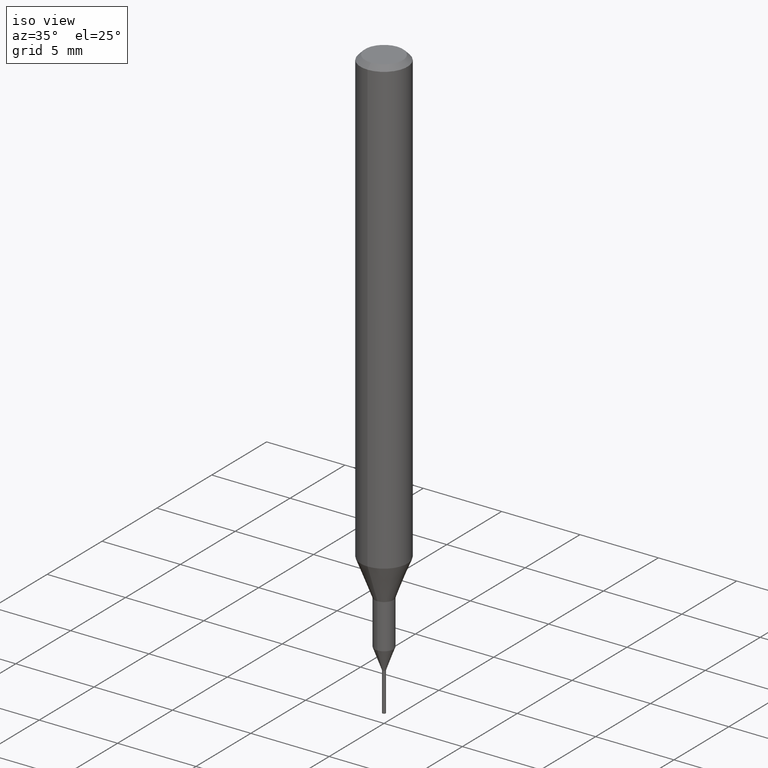
[diagram: clean part render]
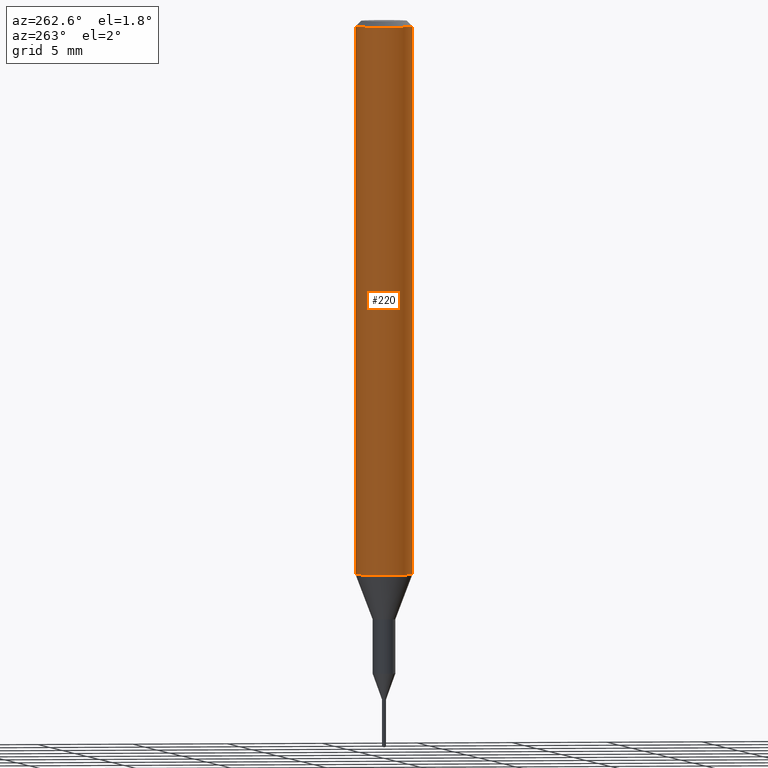
[diagram: tour spotlight — one face highlighted and labeled with its STEP entity id]
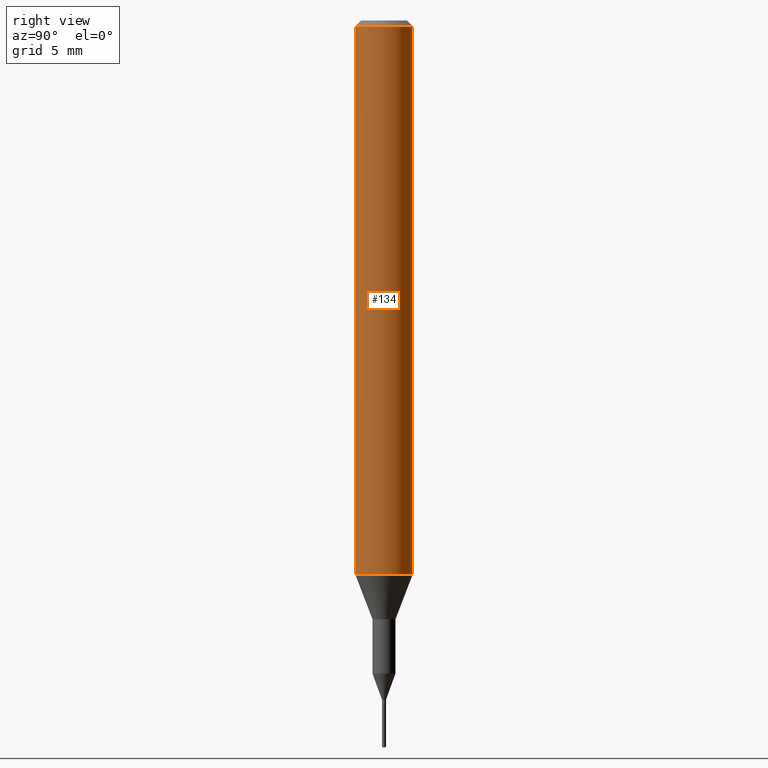
[diagram: tour spotlight — one face highlighted and labeled with its STEP entity id]
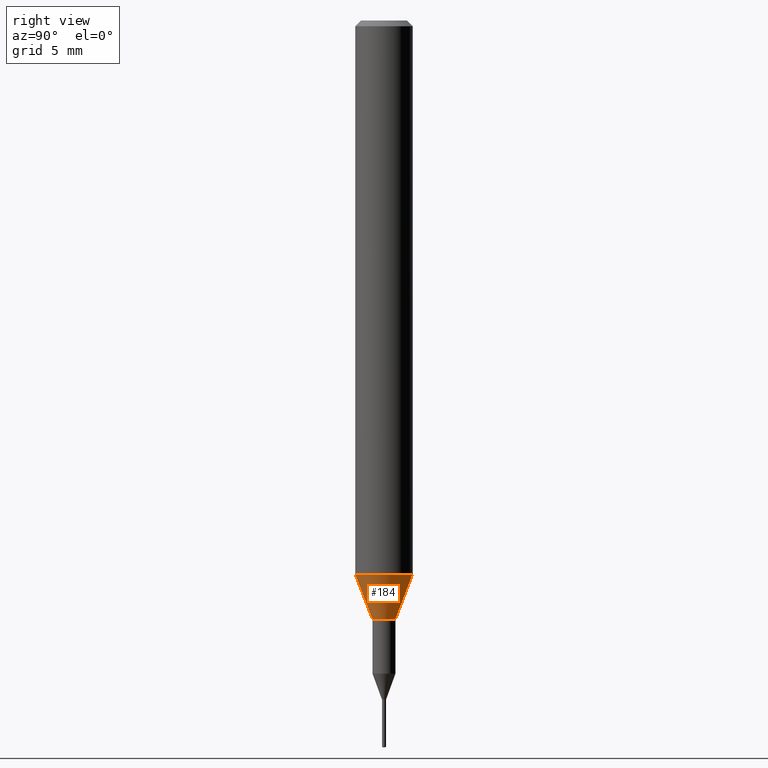
[diagram: tour spotlight — one face highlighted and labeled with its STEP entity id]
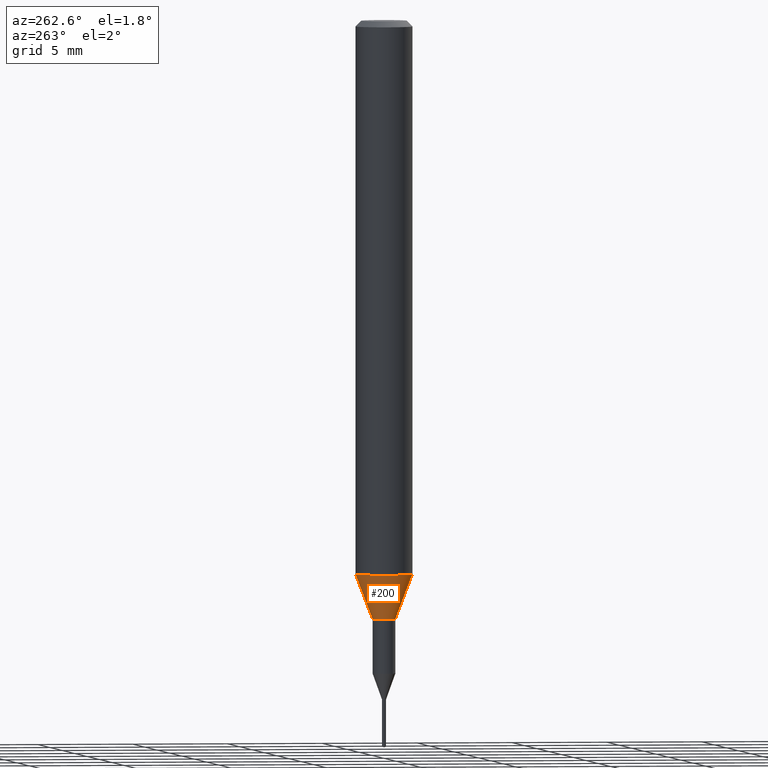
[diagram: tour spotlight — one face highlighted and labeled with its STEP entity id]
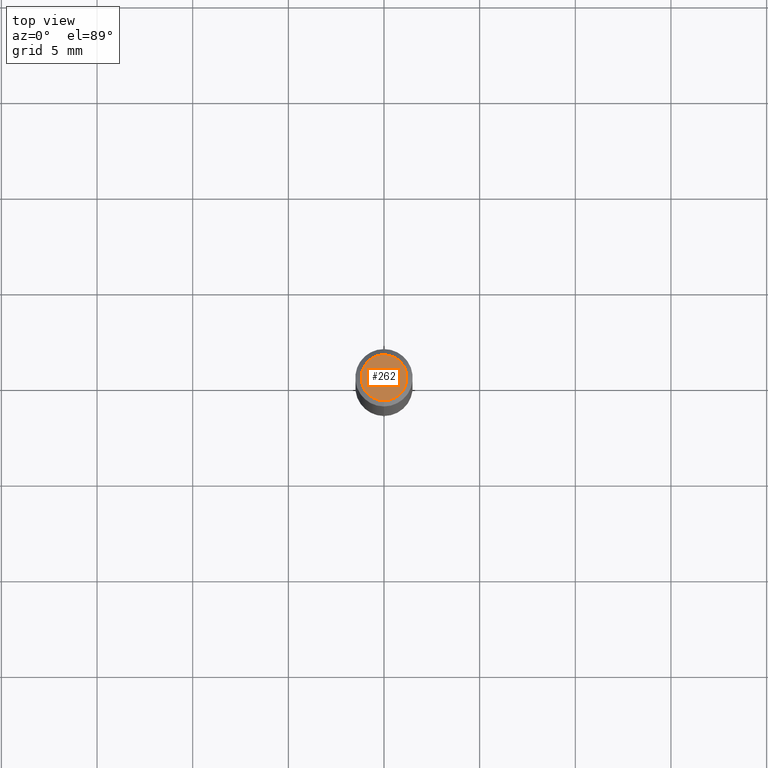
[diagram: tour spotlight — one face highlighted and labeled with its STEP entity id]
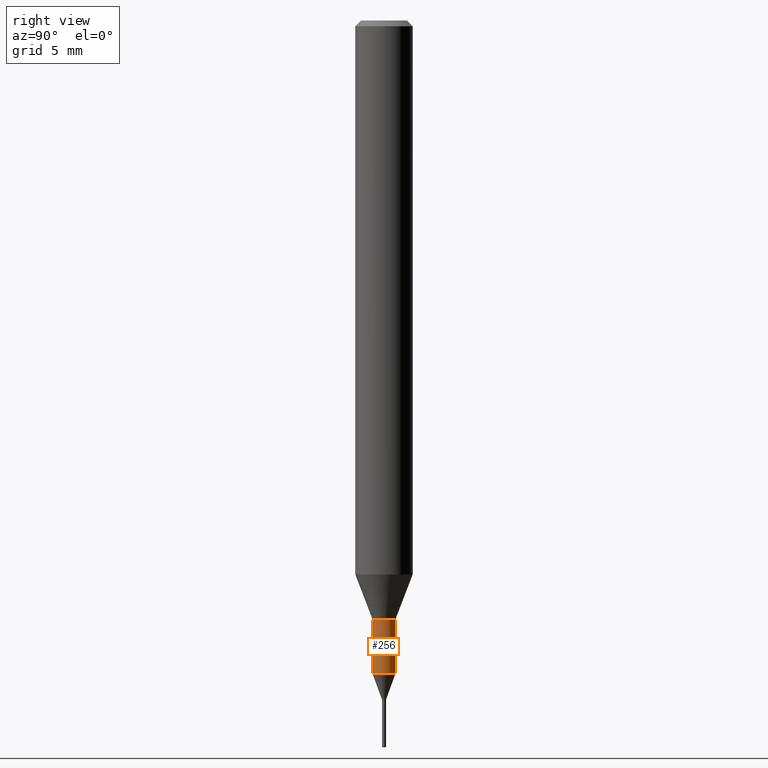
[diagram: tour spotlight — one face highlighted and labeled with its STEP entity id]
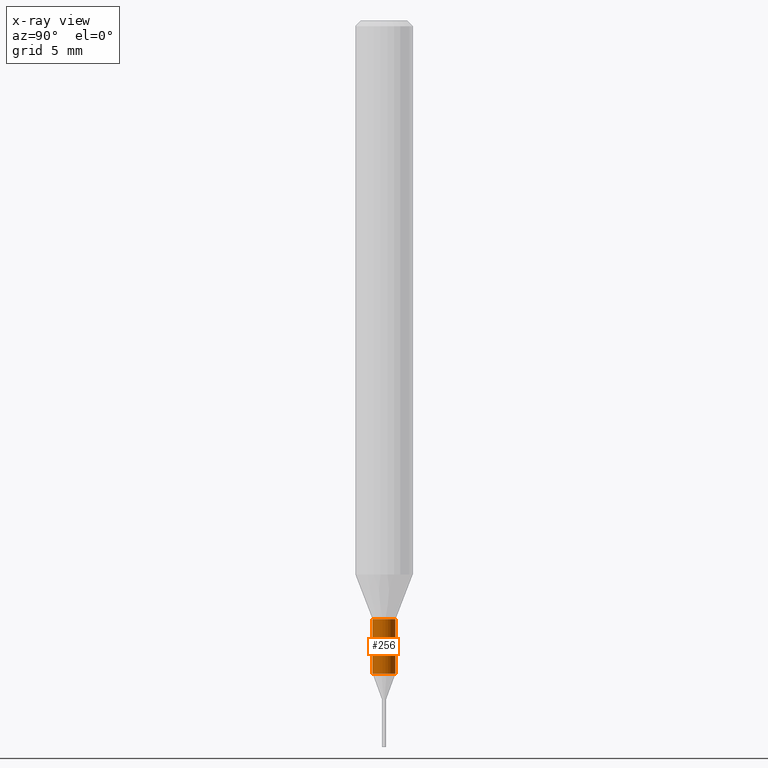
[diagram: x-ray of the same camera — body ghosted, this tour face saturated]
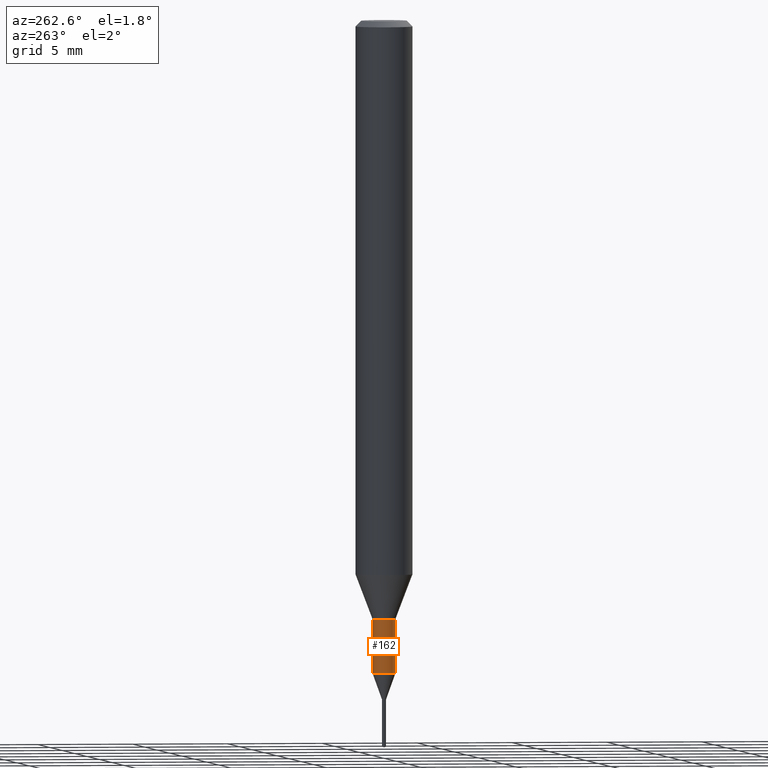
[diagram: tour spotlight — one face highlighted and labeled with its STEP entity id]
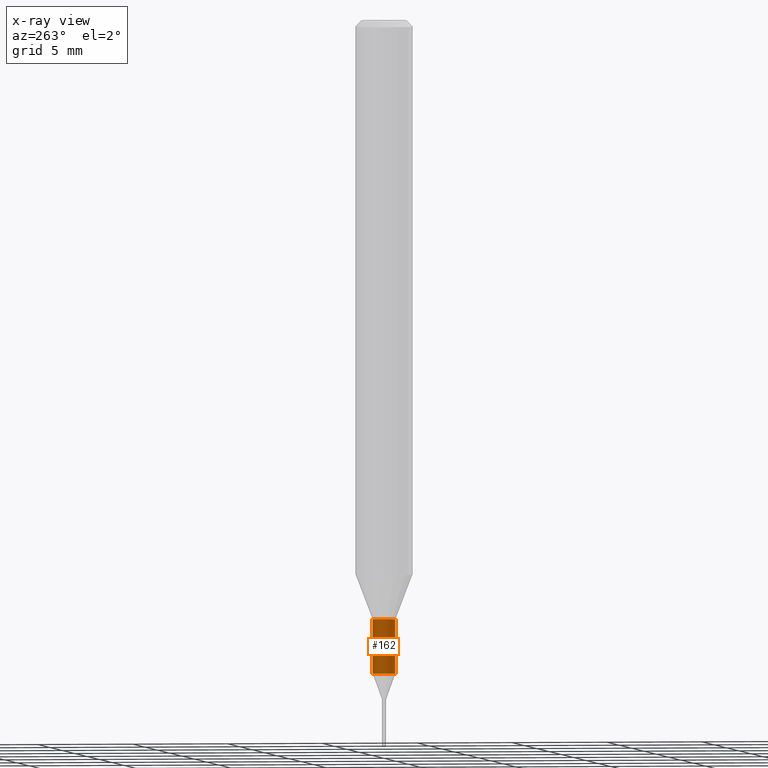
[diagram: x-ray of the same camera — body ghosted, this tour face saturated]
A machine part: a face-by-face anatomy tour. The part has 20 B-rep faces; the first image is the clean iso view, then the 7 largest visible faces are spotlighted one at a time (largest first), each with its STEP entity span.

Face 1 — auxiliary view, entity #220. In plain terms, the highlighted cylindrical surface (edge-blend (fillet) strip) has radius 1.5 mm, axis along (-0, -0, 1).
Definition (entity closure, byte-faithful):
#138=VERTEX_POINT('',#318);
#142=EDGE_CURVE('',#138,#214,#322,.T.);
#150=VERTEX_POINT('',#330);
#168=EDGE_CURVE('',#150,#214,#350,.T.);
#214=VERTEX_POINT('',#402);
#220=ADVANCED_FACE('',(#409),#410,.T.);
#230=EDGE_CURVE('',#138,#248,#422,.T.);
#248=VERTEX_POINT('',#441);
#266=EDGE_CURVE('',#248,#150,#463,.T.);
#318=CARTESIAN_POINT('',(1.83690953073357E-016,-1.5,-28.955));
#322=CIRCLE('',#525,1.5);
#330=CARTESIAN_POINT('',(0.0,1.5,-0.300000000000001));
#350=LINE('',#562,#563);
#402=CARTESIAN_POINT('',(0.0,1.5,-28.955));
#409=FACE_OUTER_BOUND('',#634,.T.);
#410=CYLINDRICAL_SURFACE('',#635,1.5);
#422=LINE('',#648,#649);
#441=CARTESIAN_POINT('',(1.83690953073357E-016,-1.5,-0.300000000000001));
#463=CIRCLE('',#703,1.5);
#525=AXIS2_PLACEMENT_3D('',#745,#746,#747);
#562=CARTESIAN_POINT('',(-1.83690953073357E-016,1.5,-14.6275));
#563=VECTOR('',#775,1.0);
#634=EDGE_LOOP('',(#857,#858,#859,#860));
#635=AXIS2_PLACEMENT_3D('',#861,#862,#863);
#648=CARTESIAN_POINT('',(1.83690953073357E-016,-1.5,-14.6275));
#649=VECTOR('',#880,1.0);
#703=AXIS2_PLACEMENT_3D('',#927,#928,#929);
#745=CARTESIAN_POINT('',(0.0,0.0,-28.955));
#746=DIRECTION('',(0.0,0.0,-1.0));
#747=DIRECTION('',(0.0,1.0,0.0));
#775=DIRECTION('',(0.0,0.0,-1.0));
#857=ORIENTED_EDGE('',*,*,#168,.T.);
#858=ORIENTED_EDGE('',*,*,#142,.F.);
#859=ORIENTED_EDGE('',*,*,#230,.T.);
#860=ORIENTED_EDGE('',*,*,#266,.T.);
#861=CARTESIAN_POINT('',(0.0,0.0,-14.6275));
#862=DIRECTION('',(-0.0,-0.0,1.0));
#863=DIRECTION('',(0.0,1.0,0.0));
#880=DIRECTION('',(-0.0,-0.0,1.0));
#927=CARTESIAN_POINT('',(0.0,0.0,-0.300000000000001));
#928=DIRECTION('',(0.0,0.0,-1.0));
#929=DIRECTION('',(0.0,1.0,0.0));

Face 2 — right view, entity #134. In plain terms, the highlighted cylindrical surface (edge-blend (fillet) strip) has radius 1.5 mm, axis along (-0, -0, 1).
Definition (entity closure, byte-faithful):
#132=EDGE_CURVE('',#214,#138,#311,.T.);
#134=ADVANCED_FACE('',(#313),#314,.T.);
#138=VERTEX_POINT('',#318);
#150=VERTEX_POINT('',#330);
#168=EDGE_CURVE('',#150,#214,#350,.T.);
#198=EDGE_CURVE('',#150,#248,#385,.T.);
#214=VERTEX_POINT('',#402);
#230=EDGE_CURVE('',#138,#248,#422,.T.);
#248=VERTEX_POINT('',#441);
#311=CIRCLE('',#511,1.5);
#313=FACE_OUTER_BOUND('',#513,.T.);
#314=CYLINDRICAL_SURFACE('',#514,1.5);
#318=CARTESIAN_POINT('',(1.83690953073357E-016,-1.5,-28.955));
#330=CARTESIAN_POINT('',(0.0,1.5,-0.300000000000001));
#350=LINE('',#562,#563);
#385=CIRCLE('',#607,1.5);
#402=CARTESIAN_POINT('',(0.0,1.5,-28.955));
#422=LINE('',#648,#649);
#441=CARTESIAN_POINT('',(1.83690953073357E-016,-1.5,-0.300000000000001));
#511=AXIS2_PLACEMENT_3D('',#733,#734,#735);
#513=EDGE_LOOP('',(#737,#738,#739,#740));
#514=AXIS2_PLACEMENT_3D('',#741,#742,#743);
#562=CARTESIAN_POINT('',(-1.83690953073357E-016,1.5,-14.6275));
#563=VECTOR('',#775,1.0);
#607=AXIS2_PLACEMENT_3D('',#828,#829,#830);
#648=CARTESIAN_POINT('',(1.83690953073357E-016,-1.5,-14.6275));
#649=VECTOR('',#880,1.0);
#733=CARTESIAN_POINT('',(0.0,0.0,-28.955));
#734=DIRECTION('',(0.0,0.0,-1.0));
#735=DIRECTION('',(0.0,1.0,0.0));
#737=ORIENTED_EDGE('',*,*,#168,.F.);
#738=ORIENTED_EDGE('',*,*,#198,.T.);
#739=ORIENTED_EDGE('',*,*,#230,.F.);
#740=ORIENTED_EDGE('',*,*,#132,.F.);
#741=CARTESIAN_POINT('',(0.0,0.0,-14.6275));
#742=DIRECTION('',(-0.0,-0.0,1.0));
#743=DIRECTION('',(0.0,1.0,0.0));
#775=DIRECTION('',(0.0,0.0,-1.0));
#828=CARTESIAN_POINT('',(0.0,0.0,-0.300000000000001));
#829=DIRECTION('',(0.0,0.0,-1.0));
#830=DIRECTION('',(0.0,1.0,0.0));
#880=DIRECTION('',(-0.0,-0.0,1.0));

Face 3 — right view, entity #184. In plain terms, the highlighted conical surface has half-angle 20.997 deg.
Definition (entity closure, byte-faithful):
#118=VERTEX_POINT('',#295);
#132=EDGE_CURVE('',#214,#138,#311,.T.);
#138=VERTEX_POINT('',#318);
#148=EDGE_CURVE('',#206,#138,#328,.T.);
#184=ADVANCED_FACE('',(#369),#370,.T.);
#206=VERTEX_POINT('',#394);
#214=VERTEX_POINT('',#402);
#244=EDGE_CURVE('',#214,#118,#437,.T.);
#260=EDGE_CURVE('',#118,#206,#455,.T.);
#295=CARTESIAN_POINT('',(0.0,0.6,-31.3));
#311=CIRCLE('',#511,1.5);
#318=CARTESIAN_POINT('',(1.83690953073357E-016,-1.5,-28.955));
#328=LINE('',#535,#536);
#369=FACE_OUTER_BOUND('',#585,.T.);
#370=CONICAL_SURFACE('',#586,1.05,0.366459241971866);
#394=CARTESIAN_POINT('',(7.34763812293426E-017,-0.6,-31.3));
#402=CARTESIAN_POINT('',(0.0,1.5,-28.955));
#437=LINE('',#671,#672);
#455=CIRCLE('',#694,0.6);
#511=AXIS2_PLACEMENT_3D('',#733,#734,#735);
#535=CARTESIAN_POINT('',(1.2858366715135E-016,-1.05,-30.1275));
#536=VECTOR('',#752,1.0);
#585=EDGE_LOOP('',(#808,#809,#810,#811));
#586=AXIS2_PLACEMENT_3D('',#812,#813,#814);
#671=CARTESIAN_POINT('',(-1.2858366715135E-016,1.05,-30.1275));
#672=VECTOR('',#891,1.0);
#694=AXIS2_PLACEMENT_3D('',#910,#911,#912);
#733=CARTESIAN_POINT('',(0.0,0.0,-28.955));
#734=DIRECTION('',(0.0,0.0,-1.0));
#735=DIRECTION('',(0.0,1.0,0.0));
#752=DIRECTION('',(4.38791184365088E-017,-0.358312026550805,0.93360189140182));
#808=ORIENTED_EDGE('',*,*,#244,.F.);
#809=ORIENTED_EDGE('',*,*,#132,.T.);
#810=ORIENTED_EDGE('',*,*,#148,.F.);
#811=ORIENTED_EDGE('',*,*,#260,.F.);
#812=CARTESIAN_POINT('',(0.0,0.0,-30.1275));
#813=DIRECTION('',(-0.0,-0.0,1.0));
#814=DIRECTION('',(0.0,1.0,0.0));
#891=DIRECTION('',(4.38791184365088E-017,-0.358312026550805,-0.93360189140182));
#910=CARTESIAN_POINT('',(0.0,0.0,-31.3));
#911=DIRECTION('',(0.0,0.0,-1.0));
#912=DIRECTION('',(0.0,1.0,0.0));

Face 4 — auxiliary view, entity #200. In plain terms, the highlighted conical surface has half-angle 20.997 deg.
Definition (entity closure, byte-faithful):
#118=VERTEX_POINT('',#295);
#120=EDGE_CURVE('',#206,#118,#297,.T.);
#138=VERTEX_POINT('',#318);
#142=EDGE_CURVE('',#138,#214,#322,.T.);
#148=EDGE_CURVE('',#206,#138,#328,.T.);
#200=ADVANCED_FACE('',(#387),#388,.T.);
#206=VERTEX_POINT('',#394);
#214=VERTEX_POINT('',#402);
#244=EDGE_CURVE('',#214,#118,#437,.T.);
#295=CARTESIAN_POINT('',(0.0,0.6,-31.3));
#297=CIRCLE('',#490,0.6);
#318=CARTESIAN_POINT('',(1.83690953073357E-016,-1.5,-28.955));
#322=CIRCLE('',#525,1.5);
#328=LINE('',#535,#536);
#387=FACE_OUTER_BOUND('',#609,.T.);
#388=CONICAL_SURFACE('',#610,1.05,0.366459241971866);
#394=CARTESIAN_POINT('',(7.34763812293426E-017,-0.6,-31.3));
#402=CARTESIAN_POINT('',(0.0,1.5,-28.955));
#437=LINE('',#671,#672);
#490=AXIS2_PLACEMENT_3D('',#714,#715,#716);
#525=AXIS2_PLACEMENT_3D('',#745,#746,#747);
#535=CARTESIAN_POINT('',(1.2858366715135E-016,-1.05,-30.1275));
#536=VECTOR('',#752,1.0);
#609=EDGE_LOOP('',(#832,#833,#834,#835));
#610=AXIS2_PLACEMENT_3D('',#836,#837,#838);
#671=CARTESIAN_POINT('',(-1.2858366715135E-016,1.05,-30.1275));
#672=VECTOR('',#891,1.0);
#714=CARTESIAN_POINT('',(0.0,0.0,-31.3));
#715=DIRECTION('',(0.0,0.0,-1.0));
#716=DIRECTION('',(0.0,1.0,0.0));
#745=CARTESIAN_POINT('',(0.0,0.0,-28.955));
#746=DIRECTION('',(0.0,0.0,-1.0));
#747=DIRECTION('',(0.0,1.0,0.0));
#752=DIRECTION('',(4.38791184365088E-017,-0.358312026550805,0.93360189140182));
#832=ORIENTED_EDGE('',*,*,#244,.T.);
#833=ORIENTED_EDGE('',*,*,#120,.F.);
#834=ORIENTED_EDGE('',*,*,#148,.T.);
#835=ORIENTED_EDGE('',*,*,#142,.T.);
#836=CARTESIAN_POINT('',(0.0,0.0,-30.1275));
#837=DIRECTION('',(-0.0,-0.0,1.0));
#838=DIRECTION('',(0.0,1.0,0.0));
#891=DIRECTION('',(4.38791184365088E-017,-0.358312026550805,-0.93360189140182));

Face 5 — top view, entity #262. In plain terms, the highlighted planar face has unit normal (-0, 0, 1).
Definition (entity closure, byte-faithful):
#114=EDGE_CURVE('',#228,#238,#291,.T.);
#116=EDGE_CURVE('',#238,#228,#293,.T.);
#228=VERTEX_POINT('',#420);
#238=VERTEX_POINT('',#430);
#262=ADVANCED_FACE('',(#457),#458,.T.);
#291=CIRCLE('',#482,1.2);
#293=CIRCLE('',#485,1.2);
#420=CARTESIAN_POINT('',(0.0,1.2,0.0));
#430=CARTESIAN_POINT('',(1.46952762458685E-016,-1.2,0.0));
#457=FACE_OUTER_BOUND('',#696,.T.);
#458=PLANE('',#697);
#482=AXIS2_PLACEMENT_3D('',#708,#709,#710);
#485=AXIS2_PLACEMENT_3D('',#711,#712,#713);
#696=EDGE_LOOP('',(#914,#915));
#697=AXIS2_PLACEMENT_3D('',#916,#917,#918);
#708=CARTESIAN_POINT('',(0.0,0.0,0.0));
#709=DIRECTION('',(0.0,0.0,-1.0));
#710=DIRECTION('',(0.0,1.0,0.0));
#711=CARTESIAN_POINT('',(0.0,0.0,0.0));
#712=DIRECTION('',(0.0,0.0,-1.0));
#713=DIRECTION('',(0.0,1.0,0.0));
#914=ORIENTED_EDGE('',*,*,#114,.F.);
#915=ORIENTED_EDGE('',*,*,#116,.F.);
#916=CARTESIAN_POINT('',(0.0,0.6,0.0));
#917=DIRECTION('',(-0.0,0.0,1.0));
#918=DIRECTION('',(0.0,-1.0,0.0));

Face 6 — right view, entity #256. An x-ray twin of the same camera follows (body ghosted, this face saturated) — the face is partly hidden behind the body. In plain terms, the highlighted cylindrical surface (edge-blend (fillet) strip) has radius 0.5999 mm, axis along (-0, -0, 1).
Definition (entity closure, byte-faithful):
#124=EDGE_CURVE('',#188,#224,#303,.T.);
#130=EDGE_CURVE('',#236,#188,#309,.T.);
#188=VERTEX_POINT('',#375);
#216=VERTEX_POINT('',#404);
#224=VERTEX_POINT('',#415);
#236=VERTEX_POINT('',#428);
#254=EDGE_CURVE('',#216,#236,#448,.T.);
#256=ADVANCED_FACE('',(#450),#451,.T.);
#258=EDGE_CURVE('',#216,#224,#453,.T.);
#303=LINE('',#497,#498);
#309=CIRCLE('',#508,0.59995);
#375=CARTESIAN_POINT('',(7.34702581975735E-017,-0.59995,-34.14));
#404=CARTESIAN_POINT('',(0.0,0.59995,-31.3));
#415=CARTESIAN_POINT('',(7.34702581975735E-017,-0.59995,-31.3));
#428=CARTESIAN_POINT('',(0.0,0.59995,-34.14));
#448=LINE('',#684,#685);
#450=FACE_OUTER_BOUND('',#687,.T.);
#451=CYLINDRICAL_SURFACE('',#688,0.59995);
#453=CIRCLE('',#691,0.59995);
#497=CARTESIAN_POINT('',(7.34702581975735E-017,-0.59995,-32.72));
#498=VECTOR('',#725,1.0);
#508=AXIS2_PLACEMENT_3D('',#730,#731,#732);
#684=CARTESIAN_POINT('',(-7.34702581975735E-017,0.59995,-32.72));
#685=VECTOR('',#898,1.0);
#687=EDGE_LOOP('',(#900,#901,#902,#903));
#688=AXIS2_PLACEMENT_3D('',#904,#905,#906);
#691=AXIS2_PLACEMENT_3D('',#907,#908,#909);
#725=DIRECTION('',(-0.0,-0.0,1.0));
#730=CARTESIAN_POINT('',(0.0,0.0,-34.14));
#731=DIRECTION('',(0.0,0.0,-1.0));
#732=DIRECTION('',(0.0,1.0,0.0));
#898=DIRECTION('',(0.0,0.0,-1.0));
#900=ORIENTED_EDGE('',*,*,#254,.F.);
#901=ORIENTED_EDGE('',*,*,#258,.T.);
#902=ORIENTED_EDGE('',*,*,#124,.F.);
#903=ORIENTED_EDGE('',*,*,#130,.F.);
#904=CARTESIAN_POINT('',(0.0,0.0,-32.72));
#905=DIRECTION('',(-0.0,-0.0,1.0));
#906=DIRECTION('',(0.0,1.0,0.0));
#907=CARTESIAN_POINT('',(0.0,0.0,-31.3));
#908=DIRECTION('',(0.0,0.0,-1.0));
#909=DIRECTION('',(0.0,1.0,0.0));

Face 7 — auxiliary view, entity #162. An x-ray twin of the same camera follows (body ghosted, this face saturated) — the face is partly hidden behind the body. In plain terms, the highlighted cylindrical surface (edge-blend (fillet) strip) has radius 0.5999 mm, axis along (-0, -0, 1).
Definition (entity closure, byte-faithful):
#124=EDGE_CURVE('',#188,#224,#303,.T.);
#144=EDGE_CURVE('',#188,#236,#324,.T.);
#162=ADVANCED_FACE('',(#342),#343,.T.);
#182=EDGE_CURVE('',#224,#216,#367,.T.);
#188=VERTEX_POINT('',#375);
#216=VERTEX_POINT('',#404);
#224=VERTEX_POINT('',#415);
#236=VERTEX_POINT('',#428);
#254=EDGE_CURVE('',#216,#236,#448,.T.);
#303=LINE('',#497,#498);
#324=CIRCLE('',#528,0.59995);
#342=FACE_OUTER_BOUND('',#552,.T.);
#343=CYLINDRICAL_SURFACE('',#553,0.59995);
#367=CIRCLE('',#583,0.59995);
#375=CARTESIAN_POINT('',(7.34702581975735E-017,-0.59995,-34.14));
#404=CARTESIAN_POINT('',(0.0,0.59995,-31.3));
#415=CARTESIAN_POINT('',(7.34702581975735E-017,-0.59995,-31.3));
#428=CARTESIAN_POINT('',(0.0,0.59995,-34.14));
#448=LINE('',#684,#685);
#497=CARTESIAN_POINT('',(7.34702581975735E-017,-0.59995,-32.72));
#498=VECTOR('',#725,1.0);
#528=AXIS2_PLACEMENT_3D('',#748,#749,#750);
#552=EDGE_LOOP('',(#759,#760,#761,#762));
#553=AXIS2_PLACEMENT_3D('',#763,#764,#765);
#583=AXIS2_PLACEMENT_3D('',#804,#805,#806);
#684=CARTESIAN_POINT('',(-7.34702581975735E-017,0.59995,-32.72));
#685=VECTOR('',#898,1.0);
#725=DIRECTION('',(-0.0,-0.0,1.0));
#748=CARTESIAN_POINT('',(0.0,0.0,-34.14));
#749=DIRECTION('',(0.0,0.0,-1.0));
#750=DIRECTION('',(0.0,1.0,0.0));
#759=ORIENTED_EDGE('',*,*,#254,.T.);
#760=ORIENTED_EDGE('',*,*,#144,.F.);
#761=ORIENTED_EDGE('',*,*,#124,.T.);
#762=ORIENTED_EDGE('',*,*,#182,.T.);
#763=CARTESIAN_POINT('',(0.0,0.0,-32.72));
#764=DIRECTION('',(-0.0,-0.0,1.0));
#765=DIRECTION('',(0.0,1.0,0.0));
#804=CARTESIAN_POINT('',(0.0,0.0,-31.3));
#805=DIRECTION('',(0.0,0.0,-1.0));
#806=DIRECTION('',(0.0,1.0,0.0));
#898=DIRECTION('',(0.0,0.0,-1.0));